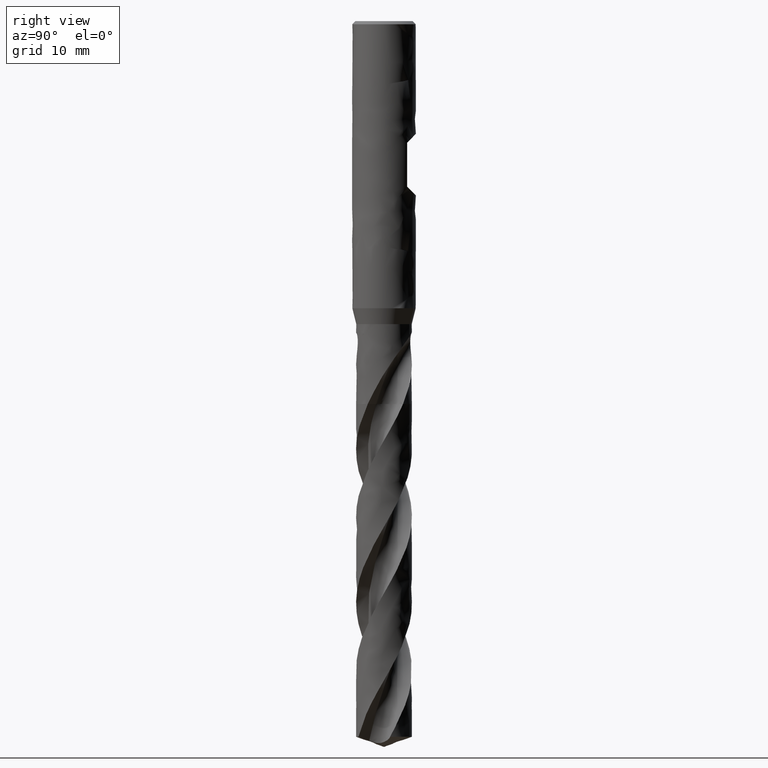
[diagram: clean part render]
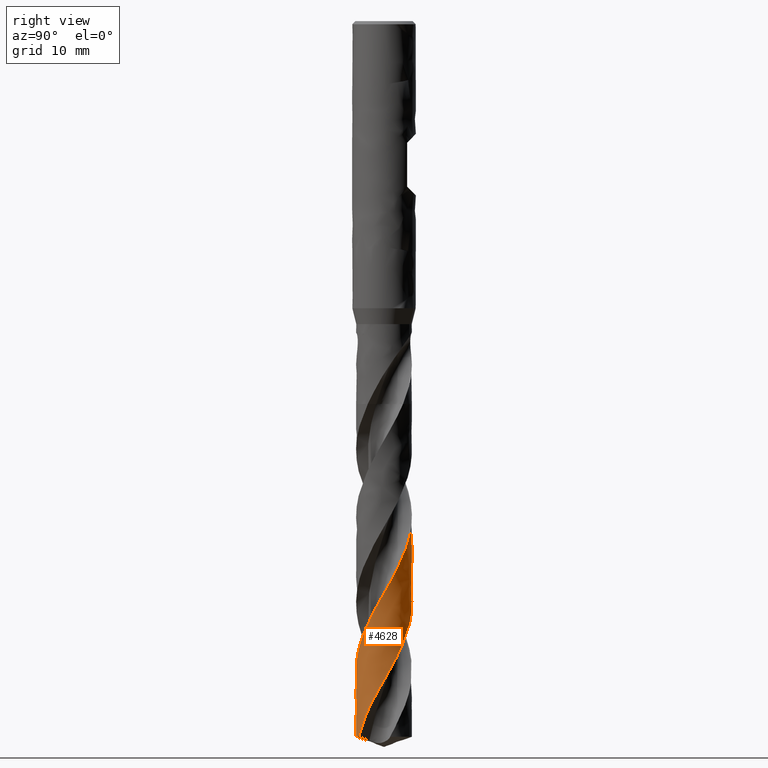
[diagram: same view with one face highlighted and labeled with its STEP entity id]
A machine part, right view. The second image highlights one B-rep face of the part: STEP entity #4628.
In plain terms, the highlighted face is a freeform B-spline surface patch.
Its self-contained STEP definition (entity closure, byte-faithful):
#2079 = VERTEX_POINT('', #2080);
#2080 = CARTESIAN_POINT('', (-3.41733029677763, -0.756210051986673, -89.7261041800683));
#2126 = EDGE_CURVE('', #2127, #2079, #2129, .T.);
#2127 = VERTEX_POINT('', #2128);
#2128 = CARTESIAN_POINT('', (-3.23621358706716, -1.33301223508334, -88.6576574191728));
#2129 = B_SPLINE_CURVE_WITH_KNOTS('', 3, (#2130, #2131, #2132, #2133, #2134, #2135, #2136), .UNSPECIFIED., .F., .U., (4, 3, 4), (0., 0.664192155566738, 1.22790963141977), .UNSPECIFIED.);
#2130 = CARTESIAN_POINT('', (-3.23621358706719, -1.33301223508326, -88.6576574191729));
#2131 = CARTESIAN_POINT('', (-3.27778316667915, -1.23209190231491, -88.8502810383199));
#2132 = CARTESIAN_POINT('', (-3.31463493641277, -1.1292055986633, -89.04296030143));
#2133 = CARTESIAN_POINT('', (-3.3465908668121, -1.02485587775508, -89.2355914422852));
#2134 = CARTESIAN_POINT('', (-3.37371271140522, -0.936291505557472, -89.3990825940302));
#2135 = CARTESIAN_POINT('', (-3.39731985772329, -0.846637677819727, -89.5626079232584));
#2136 = CARTESIAN_POINT('', (-3.41733029677763, -0.756210051986673, -89.7261041800683));
#3815 = VERTEX_POINT('', #3816);
#3816 = CARTESIAN_POINT('', (-3.5, 4.09578926173395E-15, -63.3893147736245));
#3913 = EDGE_CURVE('', #3914, #3815, #3916, .T.);
#3914 = VERTEX_POINT('', #3915);
#3915 = CARTESIAN_POINT('', (1.4222491837025, -3.19800050960871, -89.7261041800683));
#3916 = B_SPLINE_CURVE_WITH_KNOTS('', 3, (#3917, #3918, #3919, #3920, #3921, #3922, #3923, #3924, #3925, #3926, #3927, #3928, #3929, #3930, #3931, #3932, #3933, #3934, #3935, #3936, #3937, #3938, #3939, #3940, #3941, #3942, #3943, #3944, #3945, #3946, #3947, #3948, #3949, #3950, #3951, #3952, #3953, #3954, #3955, #3956, #3957, #3958, #3959, #3960, #3961, #3962, #3963, #3964, #3965, #3966, #3967, #3968, #3969, #3970, #3971, #3972, #3973, #3974, #3975, #3976, #3977, #3978, #3979, #3980, #3981, #3982, #3983, #3984, #3985, #3986, #3987, #3988, #3989, #3990, #3991, #3992, #3993, #3994, #3995, #3996, #3997, #3998, #3999, #4000, #4001, #4002, #4003, #4004, #4005, #4006, #4007, #4008, #4009, #4010, #4011, #4012, #4013, #4014, #4015, #4016, #4017, #4018, #4019, #4020, #4021, #4022, #4023, #4024, #4025, #4026, #4027, #4028, #4029, #4030, #4031, #4032, #4033, #4034, #4035, #4036, #4037, #4038, #4039, #4040, #4041, #4042, #4043, #4044, #4045, #4046, #4047, #4048, #4049, #4050, #4051, #4052, #4053, #4054, #4055, #4056, #4057, #4058, #4059, #4060, #4061, #4062, #4063, #4064, #4065, #4066, #4067), .UNSPECIFIED., .F., .U., (4, 3, 3, 3, 3, 3, 3, 3, 3, 3, 3, 3, 3, 3, 3, 3, 3, 3, 3, 3, 3, 3, 3, 3, 3, 3, 3, 3, 3, 3, 3, 3, 3, 3, 3, 3, 3, 3, 3, 3, 3, 3, 3, 3, 3, 3, 3, 3, 3, 3, 4), (0., 0.665645781716963, 1.33110577449268, 1.99638304334239, 2.66147987794214, 3.32639775791081, 3.9911373329028, 4.65569845307243, 5.32008015885256, 5.98428066099362, 6.6482973073176, 7.31212653206921, 7.97576381729242, 8.10707156616347, 8.19463557227802, 8.86116590539644, 9.52748292153568, 10.1935945707981, 10.8595075790275, 11.5252275110647, 12.1907588681643, 12.8561051740139, 13.5212690393616, 14.1862522080963, 14.8510555867853, 15.5156792589788, 16.1801224854416, 16.8443837197334, 17.5084606692591, 18.1723501784386, 18.8360481570927, 19.1313291579557, 19.2188806903114, 19.2772608522882, 19.943803137617, 20.6101303323553, 21.2762505127057, 21.9421704798662, 22.6078958517154, 23.2734311730753, 23.9387800034166, 24.6039449827666, 25.2689278787258, 25.9337296166431, 26.5983502942867, 27.2627891825353, 27.927044744985, 28.5911146520954, 29.2549956966294, 29.9186837306003, 30.3204217498991), .UNSPECIFIED.);
#3917 = CARTESIAN_POINT('', (1.42224918370251, -3.1980005096087, -89.7261041800683));
#3918 = CARTESIAN_POINT('', (1.52246757942452, -3.1534303067337, -89.5332276397378));
#3919 = CARTESIAN_POINT('', (1.62062123268252, -3.10412947864919, -89.3403025843341));
#3920 = CARTESIAN_POINT('', (1.71622329174629, -3.05034057325858, -89.1474332254537));
#3921 = CARTESIAN_POINT('', (1.81179866724078, -2.99656668093357, -88.9546176984986));
#3922 = CARTESIAN_POINT('', (1.90487496324643, -2.93827848774139, -88.761753588852));
#3923 = CARTESIAN_POINT('', (1.99499088407594, -2.87576274620384, -88.568945357169));
#3924 = CARTESIAN_POINT('', (2.08508206061574, -2.8132641704191, -88.3761900673269));
#3925 = CARTESIAN_POINT('', (2.17226199238554, -2.74650743828608, -88.1833859648348));
#3926 = CARTESIAN_POINT('', (2.25609912776273, -2.67582075739542, -87.9906378864942));
#3927 = CARTESIAN_POINT('', (2.33991352511572, -2.6051532479072, -87.7979420846353));
#3928 = CARTESIAN_POINT('', (2.42043084848225, -2.53052089852614, -87.6051974557849));
#3929 = CARTESIAN_POINT('', (2.49725246420626, -2.45229079230333, -87.4125088157646));
#3930 = CARTESIAN_POINT('', (2.57405340988167, -2.37408173510538, -87.219872021615));
#3931 = CARTESIAN_POINT('', (2.64720098416844, -2.29223575088396, -87.0271865068061));
#3932 = CARTESIAN_POINT('', (2.71633268166418, -2.20715580839302, -86.8345568410436));
#3933 = CARTESIAN_POINT('', (2.78544584074175, -2.12209868101598, -86.6419788310255));
#3934 = CARTESIAN_POINT('', (2.85058189743718, -2.03376422582779, -86.4493522926201));
#3935 = CARTESIAN_POINT('', (2.9114175144227, -1.94258797914348, -86.2567813878489));
#3936 = CARTESIAN_POINT('', (2.972236799585, -1.85143620947471, -86.0642621803257));
#3937 = CARTESIAN_POINT('', (3.02879056459236, -1.75739525426672, -85.8716946721288));
#3938 = CARTESIAN_POINT('', (3.08079749671854, -1.66092949405228, -85.6791825635645));
#3939 = CARTESIAN_POINT('', (3.13279038831226, -1.56448977710904, -85.4867224283122));
#3940 = CARTESIAN_POINT('', (3.18026711366716, -1.46557418853962, -85.2942142039913));
#3941 = CARTESIAN_POINT('', (3.22299097498415, -1.36467181958548, -85.1017611784102));
#3942 = CARTESIAN_POINT('', (3.2657031837841, -1.26379697076966, -84.9093606425173));
#3943 = CARTESIAN_POINT('', (3.30368850139092, -1.16088117429803, -84.7169121527089));
#3944 = CARTESIAN_POINT('', (3.3367570964077, -1.05643366075346, -84.5245187561121));
#3945 = CARTESIAN_POINT('', (3.36981653778257, -0.952015059085483, -84.3321786154901));
#3946 = CARTESIAN_POINT('', (3.39798011695371, -0.846008310539006, -84.1397905153186));
#3947 = CARTESIAN_POINT('', (3.42110668604864, -0.738937779974488, -83.9474575643732));
#3948 = CARTESIAN_POINT('', (3.44422672756935, -0.631897470530637, -83.7551789002357));
#3949 = CARTESIAN_POINT('', (3.46232519820988, -0.523735784504523, -83.5628520777457));
#3950 = CARTESIAN_POINT('', (3.47531090397563, -0.414986892213434, -83.3705806583421));
#3951 = CARTESIAN_POINT('', (3.48829285505547, -0.306269443568273, -83.1783648322811));
#3952 = CARTESIAN_POINT('', (3.49617196354779, -0.196907046411442, -82.9861005610117));
#3953 = CARTESIAN_POINT('', (3.4989076093213, -0.087438786790692, -82.7938919377404));
#3954 = CARTESIAN_POINT('', (3.49944888615463, -0.0657793184882177, -82.7558614017875));
#3955 = CARTESIAN_POINT('', (3.49978904613478, -0.044114364177964, -82.7178305956957));
#3956 = CARTESIAN_POINT('', (3.49992801083118, -0.0224481402194337, -82.6798003098591));
#3957 = CARTESIAN_POINT('', (3.50002068095636, -0.0079997821941421, -82.6544393984875));
#3958 = CARTESIAN_POINT('', (3.50002388218573, 0.00644931381910718, -82.6290784228058));
#3959 = CARTESIAN_POINT('', (3.49993761046511, 0.0208979150108381, -82.6037176273969));
#3960 = CARTESIAN_POINT('', (3.49928091690759, 0.130879531804628, -82.4106732457825));
#3961 = CARTESIAN_POINT('', (3.49343417498197, 0.240866868084467, -82.2175802422271));
#3962 = CARTESIAN_POINT('', (3.48242477835793, 0.3503108092525, -82.0245431020715));
#3963 = CARTESIAN_POINT('', (3.47141890519127, 0.459719723881216, -81.8315677416993));
#3964 = CARTESIAN_POINT('', (3.45524767737862, 0.568645531564415, -81.6385435691632));
#3965 = CARTESIAN_POINT('', (3.43398987576076, 0.676545292772567, -81.4455754967865));
#3966 = CARTESIAN_POINT('', (3.41273862605171, 0.784411797983304, -81.2526668994785));
#3967 = CARTESIAN_POINT('', (3.38639251299677, 0.891311024386059, -81.0597092269649));
#3968 = CARTESIAN_POINT('', (3.35508078031396, 0.99671107025452, -80.8668078760022));
#3969 = CARTESIAN_POINT('', (3.32377838509723, 1.10207968479458, -80.6739640501161));
#3970 = CARTESIAN_POINT('', (3.28749668088747, 1.20600610863253, -80.4810710145802));
#3971 = CARTESIAN_POINT('', (3.24641415091645, 1.30797368502942, -80.2882343864368));
#3972 = CARTESIAN_POINT('', (3.20534353249897, 1.40991169673674, -80.0954536697434));
#3973 = CARTESIAN_POINT('', (3.15945309916543, 1.50994603472391, -79.9026237418592));
#3974 = CARTESIAN_POINT('', (3.10896903892941, 1.60757939616629, -79.7098501828518));
#3975 = CARTESIAN_POINT('', (3.05849927904411, 1.70518510152664, -79.5171312297831));
#3976 = CARTESIAN_POINT('', (3.00341165647143, 1.8004430675234, -79.3243631673709));
#3977 = CARTESIAN_POINT('', (2.94397817665645, 1.89287941913123, -79.1316513420146));
#3978 = CARTESIAN_POINT('', (2.8845612223434, 1.98529006877593, -78.9389931002555));
#3979 = CARTESIAN_POINT('', (2.82076898681899, 2.07493015905197, -78.7462859196444));
#3980 = CARTESIAN_POINT('', (2.75291701577124, 2.16135325763216, -78.5536347872781));
#3981 = CARTESIAN_POINT('', (2.68508364999347, 2.24775265866818, -78.3610364805891));
#3982 = CARTESIAN_POINT('', (2.61315605576615, 2.33098356638125, -78.1683894341047));
#3983 = CARTESIAN_POINT('', (2.53749061363559, 2.41063091030363, -77.9757982317488));
#3984 = CARTESIAN_POINT('', (2.46184572657398, 2.49025661744441, -77.783259348197));
#3985 = CARTESIAN_POINT('', (2.3824236680567, 2.56634421064675, -77.5906719069418));
#3986 = CARTESIAN_POINT('', (2.2996184833237, 2.63851375421013, -77.3981401375665));
#3987 = CARTESIAN_POINT('', (2.2168356864475, 2.71066378545177, -77.2056604225848));
#3988 = CARTESIAN_POINT('', (2.13062602452966, 2.77893758671481, -77.01313226392));
#3989 = CARTESIAN_POINT('', (2.04141754091208, 2.84299391903263, -76.8206596895441));
#3990 = CARTESIAN_POINT('', (1.95223317170857, 2.90703293594659, -76.6282391434413));
#3991 = CARTESIAN_POINT('', (1.86000247313195, 2.96689204598108, -76.435770142783));
#3992 = CARTESIAN_POINT('', (1.76518330021614, 3.02227197926297, -76.2433567820274));
#3993 = CARTESIAN_POINT('', (1.67038987076337, 3.07763687685933, -76.0509956616162));
#3994 = CARTESIAN_POINT('', (1.57295757709134, 3.12855530677716, -75.858585911779));
#3995 = CARTESIAN_POINT('', (1.47336947796331, 3.17477280784093, -75.6662320194175));
#3996 = CARTESIAN_POINT('', (1.37380865619119, 3.22097764984969, -75.4739308131262));
#3997 = CARTESIAN_POINT('', (1.27203960016938, 3.26250904449603, -75.2815807408832));
#3998 = CARTESIAN_POINT('', (1.16856614204234, 3.29915946442005, -75.0892867243857));
#3999 = CARTESIAN_POINT('', (1.06512139036546, 3.33579971648584, -74.8970460556618));
#4000 = CARTESIAN_POINT('', (0.959918068112817, 3.36758123509648, -74.7047564049449));
#4001 = CARTESIAN_POINT('', (0.853476646520243, 3.39434494620757, -74.5125228829741));
#4002 = CARTESIAN_POINT('', (0.747065268760579, 3.42110110307471, -74.3203436202544));
#4003 = CARTESIAN_POINT('', (0.639359987473813, 3.44285649029956, -74.1281153805841));
#4004 = CARTESIAN_POINT('', (0.53089366174026, 3.45950168664863, -73.9359432288896));
#4005 = CARTESIAN_POINT('', (0.422458628280611, 3.47614208089861, -73.7438265183984));
#4006 = CARTESIAN_POINT('', (0.31320525348762, 3.48768408121665, -73.5516609307147));
#4007 = CARTESIAN_POINT('', (0.203674360160845, 3.4940687965486, -73.3595513045391));
#4008 = CARTESIAN_POINT('', (0.154943773588106, 3.49690937342856, -73.2740812194748));
#4009 = CARTESIAN_POINT('', (0.106149813740164, 3.49873051206004, -73.1886072860122));
#4010 = CARTESIAN_POINT('', (0.0573405996845676, 3.49953026213917, -73.1031386051477));
#4011 = CARTESIAN_POINT('', (0.042868549430217, 3.49976738997579, -73.077796934142));
#4012 = CARTESIAN_POINT('', (0.0283948619645062, 3.49991474666782, -73.0524551990462));
#4013 = CARTESIAN_POINT('', (0.0139207880866583, 3.49997231584181, -73.0271136397274));
#4014 = CARTESIAN_POINT('', (0.00426934333501289, 3.50001070349319, -73.0102156563573));
#4015 = CARTESIAN_POINT('', (-0.00538232512479643, 3.50000916916075, -72.993317662908));
#4016 = CARTESIAN_POINT('', (-0.0150338490626585, 3.49996771176284, -72.9764197320186));
#4017 = CARTESIAN_POINT('', (-0.125227939051729, 3.49949438130584, -72.7834914308463));
#4018 = CARTESIAN_POINT('', (-0.235436481577568, 3.49381101564929, -72.5905140529185));
#4019 = CARTESIAN_POINT('', (-0.345107191037446, 3.48294430427687, -72.3975929784502));
#4020 = CARTESIAN_POINT('', (-0.454742510187994, 3.47208109954974, -72.2047341588587));
#4021 = CARTESIAN_POINT('', (-0.56390064326763, 3.45603194077367, -72.0118261006337));
#4022 = CARTESIAN_POINT('', (-0.672035322713824, 3.43487532889115, -71.8189745370125));
#4023 = CARTESIAN_POINT('', (-0.780136406901324, 3.41372528994021, -71.6261828884732));
#4024 = CARTESIAN_POINT('', (-0.887273358620539, 3.38745951102792, -71.4333418040796));
#4025 = CARTESIAN_POINT('', (-0.99291075037987, 3.35620741936194, -71.2405573738851));
#4026 = CARTESIAN_POINT('', (-1.0985163911132, 3.32496472101739, -71.0478308881678));
#4027 = CARTESIAN_POINT('', (-1.20268018970608, 3.28872190780289, -70.8550548779991));
#4028 = CARTESIAN_POINT('', (-1.30488190356407, 3.24765811281777, -70.6623355736277));
#4029 = CARTESIAN_POINT('', (-1.40705375200982, 3.20660631750583, -70.4696725857432));
#4030 = CARTESIAN_POINT('', (-1.50731947591194, 3.16071433211251, -70.276960085323));
#4031 = CARTESIAN_POINT('', (-1.60517828348219, 3.11020942674882, -70.0843042478073));
#4032 = CARTESIAN_POINT('', (-1.70300915443616, 3.05971893946558, -69.8917034094515));
#4033 = CARTESIAN_POINT('', (-1.79848709228852, 3.00459100257631, -69.6990531498282));
#4034 = CARTESIAN_POINT('', (-1.89113494885343, 2.94509908241219, -69.5064594384507));
#4035 = CARTESIAN_POINT('', (-1.98375684437229, 2.88562383260115, -69.3139196941524));
#4036 = CARTESIAN_POINT('', (-2.0736003565814, 2.82175484778412, -69.1213306727145));
#4037 = CARTESIAN_POINT('', (-2.16021607715547, 2.75380945237667, -68.9287980412039));
#4038 = CARTESIAN_POINT('', (-2.24680786383897, 2.68588283182495, -68.7363186108315));
#4039 = CARTESIAN_POINT('', (-2.33022086839242, 2.61384498480849, -68.5437900683246));
#4040 = CARTESIAN_POINT('', (-2.41003738843765, 2.53805433084728, -68.351317747413));
#4041 = CARTESIAN_POINT('', (-2.48983205937316, 2.46228442394838, -68.1588981142014));
#4042 = CARTESIAN_POINT('', (-2.56607607544184, 2.38272209517938, -67.9664295170953));
#4043 = CARTESIAN_POINT('', (-2.6383872310238, 2.29976364419706, -67.7740170025972));
#4044 = CARTESIAN_POINT('', (-2.7106786872309, 2.21682779318029, -67.5816569061004));
#4045 = CARTESIAN_POINT('', (-2.77907937396433, 2.13045182789307, -67.389247933707));
#4046 = CARTESIAN_POINT('', (-2.84324614052922, 2.04106623713335, -67.1968949795269));
#4047 = CARTESIAN_POINT('', (-2.90739543112849, 1.9517049907437, -67.0045944131139));
#4048 = CARTESIAN_POINT('', (-2.96734856343538, 1.85928637630427, -66.812244949055));
#4049 = CARTESIAN_POINT('', (-3.02280469730491, 1.76427088678337, -66.6199515647412));
#4050 = CARTESIAN_POINT('', (-3.07824566261686, 1.66928138623472, -66.427710777193));
#4051 = CARTESIAN_POINT('', (-3.12922251869183, 1.57164433145289, -66.2354209427015));
#4052 = CARTESIAN_POINT('', (-3.17547952514292, 1.47184570706243, -66.0431873603848));
#4053 = CARTESIAN_POINT('', (-3.22172376879097, 1.37207461818031, -65.8510068173704));
#4054 = CARTESIAN_POINT('', (-3.26327586629654, 1.27008904307177, -65.6587770575476));
#4055 = CARTESIAN_POINT('', (-3.29992729793463, 1.16639608553268, -65.4666036866653));
#4056 = CARTESIAN_POINT('', (-3.33656848572327, 1.06273210953669, -65.2744840270568));
#4057 = CARTESIAN_POINT('', (-3.3683314791132, 0.957305900433742, -65.0823150788371));
#4058 = CARTESIAN_POINT('', (-3.39505657660846, 0.850641429527102, -64.8902025597759));
#4059 = CARTESIAN_POINT('', (-3.42177407344193, 0.744007294171835, -64.6981446778319));
#4060 = CARTESIAN_POINT('', (-3.44347089021827, 0.636078316012456, -64.5060375245779));
#4061 = CARTESIAN_POINT('', (-3.46003739880275, 0.527390935537382, -64.3139867563013));
#4062 = CARTESIAN_POINT('', (-3.47659909099552, 0.418735153814334, -64.1219918230681));
#4063 = CARTESIAN_POINT('', (-3.48804236677015, 0.309262897647552, -63.9299477071904));
#4064 = CARTESIAN_POINT('', (-3.49430856644917, 0.19951852656195, -63.7379598672266));
#4065 = CARTESIAN_POINT('', (-3.49810156936429, 0.13308899338906, -63.6217474140729));
#4066 = CARTESIAN_POINT('', (-3.5, 0.0665422029136713, -63.5055246666977));
#4067 = CARTESIAN_POINT('', (-3.5, 3.94930423086874E-15, -63.3893147736245));
#4243 = VERTEX_POINT('', #4244);
#4244 = CARTESIAN_POINT('', (-3.5, 3.43311929513212E-15, -52.567092936876));
#4257 = EDGE_CURVE('', #4243, #3815, #4258, .T.);
#4258 = LINE('', #4259, #4260);
#4259 = CARTESIAN_POINT('', (-3.5, 3.43311929513212E-15, -52.567092936876));
#4260 = VECTOR('', #4261, 10.8222218367485);
#4261 = DIRECTION('', (0., 6.62669966601833E-16, -10.8222218367485));
#4286 = EDGE_CURVE('', #2127, #4243, #4287, .T.);
#4287 = B_SPLINE_CURVE_WITH_KNOTS('', 3, (#4288, #4289, #4290, #4291, #4292, #4293, #4294, #4295, #4296, #4297, #4298, #4299, #4300, #4301, #4302, #4303, #4304, #4305, #4306, #4307, #4308, #4309, #4310, #4311, #4312, #4313, #4314, #4315, #4316, #4317, #4318, #4319, #4320, #4321, #4322, #4323, #4324, #4325, #4326, #4327, #4328, #4329, #4330, #4331, #4332, #4333, #4334, #4335, #4336, #4337, #4338, #4339, #4340, #4341, #4342, #4343, #4344, #4345, #4346, #4347, #4348, #4349, #4350, #4351, #4352, #4353, #4354, #4355, #4356, #4357, #4358, #4359, #4360, #4361, #4362, #4363, #4364, #4365, #4366, #4367, #4368, #4369, #4370, #4371, #4372, #4373, #4374, #4375, #4376, #4377, #4378, #4379, #4380, #4381, #4382, #4383, #4384, #4385, #4386, #4387, #4388, #4389, #4390, #4391, #4392, #4393, #4394, #4395, #4396, #4397, #4398, #4399, #4400, #4401, #4402, #4403, #4404, #4405, #4406, #4407, #4408, #4409, #4410, #4411, #4412, #4413, #4414, #4415, #4416, #4417, #4418, #4419, #4420, #4421, #4422, #4423, #4424, #4425, #4426, #4427, #4428, #4429, #4430, #4431, #4432, #4433, #4434, #4435, #4436, #4437, #4438, #4439, #4440, #4441, #4442, #4443, #4444, #4445, #4446, #4447, #4448, #4449, #4450, #4451, #4452, #4453, #4454, #4455, #4456, #4457, #4458, #4459, #4460, #4461, #4462, #4463, #4464, #4465, #4466, #4467, #4468, #4469, #4470, #4471, #4472, #4473, #4474, #4475, #4476, #4477, #4478, #4479, #4480, #4481, #4482, #4483, #4484, #4485, #4486, #4487, #4488, #4489, #4490, #4491, #4492, #4493, #4494, #4495, #4496, #4497, #4498), .UNSPECIFIED., .F., .U., (4, 3, 3, 3, 3, 3, 3, 3, 3, 3, 3, 3, 3, 3, 3, 3, 3, 3, 3, 3, 3, 3, 3, 3, 3, 3, 3, 3, 3, 3, 3, 3, 3, 3, 3, 3, 3, 3, 3, 3, 3, 3, 3, 3, 3, 3, 3, 3, 3, 3, 3, 3, 3, 3, 3, 3, 3, 3, 3, 3, 3, 3, 3, 3, 3, 3, 3, 3, 3, 3, 4), (0., 0.665696927607767, 1.33120910642811, 1.99653979167091, 2.66169135316979, 3.32666531430845, 3.99146238351909, 4.65608246076089, 5.32052463842921, 5.98478724248769, 6.64886789152936, 7.31276334666327, 7.9764694435651, 8.27175233842997, 8.35930404334361, 8.41769648192945, 9.08421757182666, 9.75052704022185, 10.4166326518453, 11.0825409527459, 11.7482573347178, 12.4137861411314, 13.079130750072, 13.7442936365028, 14.4092764161929, 15.0740798733322, 15.7387039730723, 16.4031478608942, 17.067409899794, 17.7314876963212, 18.3953779850564, 19.0590765640893, 19.3543576170844, 19.4419091506907, 19.5002895123589, 20.1668315350971, 20.8331588076763, 21.4992792931688, 22.16519967079, 22.8309254399997, 23.4964610319406, 24.1618098953261, 24.8269745606603, 25.4919566856364, 26.15675708371, 26.8213757371363, 27.4858117970764, 28.150063620684, 28.8141287514138, 29.4780038454642, 30.1416846075072, 30.4369616959306, 30.524512866757, 30.582902795901, 31.249454020457, 31.9157878573161, 32.581912381005, 33.2478343322412, 33.9135592556611, 34.5790916131995, 35.2444348712913, 35.9095915658836, 36.5745633481711, 37.2393510130516, 37.9039545117296, 38.568372953778, 39.2326046236743, 39.8966469528464, 40.5604964660259, 41.2241487275287, 41.5639877031654), .UNSPECIFIED.);
#4288 = CARTESIAN_POINT('', (-3.23621358706716, -1.33301223508334, -88.6576574191728));
#4289 = CARTESIAN_POINT('', (-3.19454982877418, -1.4341612096594, -88.4645973982494));
#4290 = CARTESIAN_POINT('', (-3.14812375508154, -1.5333912629376, -88.2714916717827));
#4291 = CARTESIAN_POINT('', (-3.09716029315799, -1.63021413270942, -88.0784444937931));
#4292 = CARTESIAN_POINT('', (-3.04621097496471, -1.72701013153286, -87.8854508915834));
#4293 = CARTESIAN_POINT('', (-2.99070040633197, -1.8214503345691, -87.6924118048745));
#4294 = CARTESIAN_POINT('', (-2.9308986329947, -1.91306905340863, -87.4994310100518));
#4295 = CARTESIAN_POINT('', (-2.8711131683564, -2.00466278666626, -87.3065028435295));
#4296 = CARTESIAN_POINT('', (-2.80700735192899, -2.0934847429205, -87.1135294847516));
#4297 = CARTESIAN_POINT('', (-2.73889424018142, -2.17909576226035, -86.9206140925006));
#4298 = CARTESIAN_POINT('', (-2.67079946619559, -2.26468373296192, -86.7277506379221));
#4299 = CARTESIAN_POINT('', (-2.59866299444185, -2.34710838374365, -86.5348423018949));
#4300 = CARTESIAN_POINT('', (-2.52283830050438, -2.42596102802748, -86.3419916151871));
#4301 = CARTESIAN_POINT('', (-2.44703385231799, -2.5047926180752, -86.1491924210314));
#4302 = CARTESIAN_POINT('', (-2.36750177357107, -2.58009709439162, -85.9563485889605));
#4303 = CARTESIAN_POINT('', (-2.28463278866395, -2.65150014538215, -85.763562181579));
#4304 = CARTESIAN_POINT('', (-2.20178584801023, -2.72288420221037, -85.5708270579488));
#4305 = CARTESIAN_POINT('', (-2.11555813939788, -2.79040821469935, -85.3780473893596));
#4306 = CARTESIAN_POINT('', (-2.02637383873437, -2.85373598388024, -85.1853250990261));
#4307 = CARTESIAN_POINT('', (-1.93721328201573, -2.91704689301907, -84.9926541180307));
#4308 = CARTESIAN_POINT('', (-1.84504875156898, -2.97619857444129, -84.7999384416679));
#4309 = CARTESIAN_POINT('', (-1.75033339918749, -3.03089640068557, -84.6072803693338));
#4310 = CARTESIAN_POINT('', (-1.65564339936661, -3.08557958590366, -84.4146738659938));
#4311 = CARTESIAN_POINT('', (-1.55835294034528, -3.13584080410006, -84.2220222465583));
#4312 = CARTESIAN_POINT('', (-1.45893930384261, -3.18142988414066, -84.0294286937096));
#4313 = CARTESIAN_POINT('', (-1.35955253508882, -3.22700664317585, -83.8368871916198));
#4314 = CARTESIAN_POINT('', (-1.2579916421134, -3.26793772104482, -83.6443001279721));
#4315 = CARTESIAN_POINT('', (-1.15475385831836, -3.30401929877823, -83.451771479351));
#4316 = CARTESIAN_POINT('', (-1.05154435344881, -3.34009099303477, -83.2592955682366));
#4317 = CARTESIAN_POINT('', (-0.946605639671556, -3.37133446071825, -83.0667739136702));
#4318 = CARTESIAN_POINT('', (-0.840451291363016, -3.39759350523965, -82.8743107683741));
#4319 = CARTESIAN_POINT('', (-0.734326546595276, -3.42384522683262, -82.6819012957787));
#4320 = CARTESIAN_POINT('', (-0.626932188919985, -3.4451288119137, -82.489446119218));
#4321 = CARTESIAN_POINT('', (-0.518794308426089, -3.46133680325185, -82.2970493435119));
#4322 = CARTESIAN_POINT('', (-0.41068727133941, -3.4775401716986, -82.1047074437851));
#4323 = CARTESIAN_POINT('', (-0.301780926954734, -3.48867923693406, -81.9123200374663));
#4324 = CARTESIAN_POINT('', (-0.192609766239787, -3.49469619251106, -81.7199907861266));
#4325 = CARTESIAN_POINT('', (-0.144039508226268, -3.49737313652189, -81.6344234870345));
#4326 = CARTESIAN_POINT('', (-0.0954084647134712, -3.49903756702111, -81.5488530054968));
#4327 = CARTESIAN_POINT('', (-0.0467643688849631, -3.4996875708844, -81.4632882457961));
#4328 = CARTESIAN_POINT('', (-0.0323413406708917, -3.49988029774878, -81.4379181999092));
#4329 = CARTESIAN_POINT('', (-0.0179168764906649, -3.49998386517256, -81.4125481363524));
#4330 = CARTESIAN_POINT('', (-0.00349221967268764, -3.49999825777124, -81.3871782884351));
#4331 = CARTESIAN_POINT('', (0.00612827701776743, -3.50000785688682, -81.3702579179191));
#4332 = CARTESIAN_POINT('', (0.0157489116051692, -3.4999777897783, -81.3533375568079));
#4333 = CARTESIAN_POINT('', (0.0253693219565456, -3.49990805557852, -81.3364172781777));
#4334 = CARTESIAN_POINT('', (0.135181594708819, -3.499112073839, -81.143280583991));
#4335 = CARTESIAN_POINT('', (0.244997982184085, -3.49314190265462, -80.950098450161));
#4336 = CARTESIAN_POINT('', (0.354271752311934, -3.48202405584944, -80.7569746864244));
#4337 = CARTESIAN_POINT('', (0.463510827844643, -3.47090973897823, -80.5639122397888));
#4338 = CARTESIAN_POINT('', (0.572266999643736, -3.45464501622014, -80.3708039565666));
#4339 = CARTESIAN_POINT('', (0.680000069625863, -3.43330742947802, -80.1777544681241));
#4340 = CARTESIAN_POINT('', (0.787700178773882, -3.41197637095103, -79.9847640429957));
#4341 = CARTESIAN_POINT('', (0.894434911524265, -3.38556427841985, -79.7917273845149));
#4342 = CARTESIAN_POINT('', (0.999675120666834, -3.35419880942078, -79.598749827546));
#4343 = CARTESIAN_POINT('', (1.10488415604148, -3.32284263135585, -79.4058294334964));
#4344 = CARTESIAN_POINT('', (1.208654534548, -3.28651963356505, -79.2128626492049));
#4345 = CARTESIAN_POINT('', (1.31047198720956, -3.24540647234504, -79.0199550449597));
#4346 = CARTESIAN_POINT('', (1.41226009544575, -3.2043051601947, -78.8271030378902));
#4347 = CARTESIAN_POINT('', (1.51214951961921, -3.15839498421114, -78.6342046805525));
#4348 = CARTESIAN_POINT('', (1.60964476955743, -3.10790021008339, -78.4413654016314));
#4349 = CARTESIAN_POINT('', (1.7071125487492, -3.0574196636143, -78.2485804580645));
#4350 = CARTESIAN_POINT('', (1.80223879392405, -3.00233050711236, -78.0557493456554));
#4351 = CARTESIAN_POINT('', (1.89455077325649, -2.94290288109431, -77.862977086873));
#4352 = CARTESIAN_POINT('', (1.98683720353206, -2.88349170277685, -77.670258181398));
#4353 = CARTESIAN_POINT('', (2.0763602003788, -2.81971269309597, -77.4774933690341));
#4354 = CARTESIAN_POINT('', (2.16267381656848, -2.75187971450954, -77.2847871249061));
#4355 = CARTESIAN_POINT('', (2.24896385831755, -2.68406526283225, -77.0921335137473));
#4356 = CARTESIAN_POINT('', (2.33209311662897, -2.61216219714151, -76.8994342716107));
#4357 = CARTESIAN_POINT('', (2.4116464489383, -2.53652545923026, -76.7067933199662));
#4358 = CARTESIAN_POINT('', (2.49117824052176, -2.46090920154516, -76.5142045298819));
#4359 = CARTESIAN_POINT('', (2.56717985065011, -2.38151960373949, -76.3215703263283));
#4360 = CARTESIAN_POINT('', (2.63927088146534, -2.29874948923303, -76.1289942172558));
#4361 = CARTESIAN_POINT('', (2.71134247185607, -2.21600169492571, -75.9364700392108));
#4362 = CARTESIAN_POINT('', (2.77954562109848, -2.12982923081221, -75.7439005284913));
#4363 = CARTESIAN_POINT('', (2.84353844170632, -2.04065899418261, -75.5513890780627));
#4364 = CARTESIAN_POINT('', (2.9075139976839, -1.95151281480115, -75.3589295653199));
#4365 = CARTESIAN_POINT('', (2.96731694295845, -1.85932111275564, -75.1664245795413));
#4366 = CARTESIAN_POINT('', (3.02264737805838, -1.76454040132744, -74.9739778679586));
#4367 = CARTESIAN_POINT('', (3.07796281038628, -1.66978538955989, -74.7815833380394));
#4368 = CARTESIAN_POINT('', (3.12883831111018, -1.57239119487739, -74.5891429608708));
#4369 = CARTESIAN_POINT('', (3.17501885858037, -1.47283917915672, -74.3967612630593));
#4370 = CARTESIAN_POINT('', (3.22118676708596, -1.37331440941887, -74.2044322174055));
#4371 = CARTESIAN_POINT('', (3.26268688848531, -1.27158005153148, -74.012056952355));
#4372 = CARTESIAN_POINT('', (3.29931103625381, -1.16813812798571, -73.8197406565748));
#4373 = CARTESIAN_POINT('', (3.33592502580238, -1.06472489550506, -73.6274777024106));
#4374 = CARTESIAN_POINT('', (3.36768498537523, -0.9595507257716, -73.4351683881602));
#4375 = CARTESIAN_POINT('', (3.39443095292082, -0.853134518029523, -73.2429181127988));
#4376 = CARTESIAN_POINT('', (3.42116936852394, -0.746748357773216, -73.0507221208734));
#4377 = CARTESIAN_POINT('', (3.44291064641657, -0.639065013140071, -72.8584798172535));
#4378 = CARTESIAN_POINT('', (3.45954424629666, -0.530616252970748, -72.6662964489617));
#4379 = CARTESIAN_POINT('', (3.47617304293963, -0.422198809240122, -72.4741685769122));
#4380 = CARTESIAN_POINT('', (3.48770588885567, -0.312958987701883, -72.2819945762118));
#4381 = CARTESIAN_POINT('', (3.49408261567852, -0.20343715200377, -72.0898792903507));
#4382 = CARTESIAN_POINT('', (3.496919636384, -0.154710630669316, -72.0044067495052));
#4383 = CARTESIAN_POINT('', (3.49873745137082, -0.105919787863821, -71.9189309491643));
#4384 = CARTESIAN_POINT('', (3.49953398703061, -0.0571128148287613, -71.8334609385142));
#4385 = CARTESIAN_POINT('', (3.49977016174578, -0.0426414313906541, -71.808118877336));
#4386 = CARTESIAN_POINT('', (3.49991657497975, -0.0281683344837426, -71.7827767990608));
#4387 = CARTESIAN_POINT('', (3.49997320745533, -0.0136947834900151, -71.7574349385083));
#4388 = CARTESIAN_POINT('', (3.50001097063628, -0.00404365452821925, -71.7405366967133));
#4389 = CARTESIAN_POINT('', (3.50000881458689, 0.00560772878672672, -71.7236384638235));
#4390 = CARTESIAN_POINT('', (3.49996673740145, 0.0152590000794716, -71.7067403135105));
#4391 = CARTESIAN_POINT('', (3.49948633249321, 0.125449785227736, -71.5138102430498));
#4392 = CARTESIAN_POINT('', (3.49379617339113, 0.23565972045774, -71.3208339522656));
#4393 = CARTESIAN_POINT('', (3.48292159699415, 0.345336284210197, -71.1279167499221));
#4394 = CARTESIAN_POINT('', (3.47205052422775, 0.454977511766744, -70.9350617026992));
#4395 = CARTESIAN_POINT('', (3.45599244748656, 0.564145857160187, -70.7421600765963));
#4396 = CARTESIAN_POINT('', (3.43482448944268, 0.672295118772269, -70.5493179053589));
#4397 = CARTESIAN_POINT('', (3.4136631006337, 0.780410817491679, -70.3565355804949));
#4398 = CARTESIAN_POINT('', (3.38738365366648, 0.887566181840862, -70.1637063627942));
#4399 = CARTESIAN_POINT('', (3.35611418449717, 0.993225845725416, -69.9709368392913));
#4400 = CARTESIAN_POINT('', (3.32485410892415, 1.09885376860983, -69.7782252252805));
#4401 = CARTESIAN_POINT('', (3.28859038843304, 1.2030430654624, -69.5854666106481));
#4402 = CARTESIAN_POINT('', (3.24750084722705, 1.30527324620542, -69.3927677358692));
#4403 = CARTESIAN_POINT('', (3.20642331401874, 1.40747355122492, -69.2001251753632));
#4404 = CARTESIAN_POINT('', (3.16050092012139, 1.50777023767343, -69.0074356710742));
#4405 = CARTESIAN_POINT('', (3.10995984351346, 1.60566178622205, -68.8148058019029));
#4406 = CARTESIAN_POINT('', (3.05943320492844, 1.70352537018193, -68.6222309611294));
#4407 = CARTESIAN_POINT('', (3.00426340658653, 1.79903765433635, -68.4296093505559));
#4408 = CARTESIAN_POINT('', (2.94472317706424, 1.89172022520792, -68.2370471691801));
#4409 = CARTESIAN_POINT('', (2.88519965267564, 1.98437679223722, -68.0445390147541));
#4410 = CARTESIAN_POINT('', (2.82127578957572, 2.07425554765429, -67.851984328198));
#4411 = CARTESIAN_POINT('', (2.75326863265529, 2.16090532796707, -67.6594888189798));
#4412 = CARTESIAN_POINT('', (2.68528030312974, 2.24753111978066, -67.4670466010493));
#4413 = CARTESIAN_POINT('', (2.61317345435143, 2.33097743599041, -67.2745580927175));
#4414 = CARTESIAN_POINT('', (2.53730672015986, 2.41082446640804, -67.082128525401));
#4415 = CARTESIAN_POINT('', (2.46146080598709, 2.49064958449885, -66.8897517663047));
#4416 = CARTESIAN_POINT('', (2.38181476210387, 2.56692188598771, -66.6973288965863));
#4417 = CARTESIAN_POINT('', (2.2987655332299, 2.63925690739539, -66.5049648150204));
#4418 = CARTESIAN_POINT('', (2.21573900012256, 2.71157216102452, -66.3126533028806));
#4419 = CARTESIAN_POINT('', (2.12926458143316, 2.77999283068471, -66.1202957253363));
#4420 = CARTESIAN_POINT('', (2.03977365488869, 2.84417359470586, -65.9279969411367));
#4421 = CARTESIAN_POINT('', (1.95030719357758, 2.90833681284353, -65.7357507280168));
#4422 = CARTESIAN_POINT('', (1.85777596213403, 2.96829826052323, -65.5434582811943));
#4423 = CARTESIAN_POINT('', (1.76264125958934, 3.02375524637715, -65.3512248714758));
#4424 = CARTESIAN_POINT('', (1.6675326938028, 3.07919699629939, -65.1590442748529));
#4425 = CARTESIAN_POINT('', (1.5697699268679, 3.1301672037951, -64.9668170955396));
#4426 = CARTESIAN_POINT('', (1.46983955589984, 3.17640861349925, -64.7746493000444));
#4427 = CARTESIAN_POINT('', (1.3699368938509, 3.2226372012808, -64.5825347892698));
#4428 = CARTESIAN_POINT('', (1.26781401624122, 3.26416453896906, -64.3903734206885));
#4429 = CARTESIAN_POINT('', (1.16397871225373, 3.30078074967428, -64.1982716450009));
#4430 = CARTESIAN_POINT('', (1.06017259194485, 3.33738666912322, -64.0062238609353));
#4431 = CARTESIAN_POINT('', (0.954599560657895, 3.36910377595929, -63.8141291388183));
#4432 = CARTESIAN_POINT('', (0.847784630322897, 3.39577107894345, -63.6220940354495));
#4433 = CARTESIAN_POINT('', (0.741000267403234, 3.42243075049889, -63.430113887102));
#4434 = CARTESIAN_POINT('', (0.632917598195718, 3.44405775288479, -63.2380868750058));
#4435 = CARTESIAN_POINT('', (0.524074658198241, 3.4605412513992, -63.0461193665555));
#4436 = CARTESIAN_POINT('', (0.415263579114372, 3.4770199248021, -62.8542080515543));
#4437 = CARTESIAN_POINT('', (0.305633970743133, 3.48836696968511, -62.6622500546712));
#4438 = CARTESIAN_POINT('', (0.195732440267016, 3.49452268726782, -62.4703513543785));
#4439 = CARTESIAN_POINT('', (0.146836335711624, 3.49726141719482, -62.3849740273029));
#4440 = CARTESIAN_POINT('', (0.0978777530541636, 3.49897395103732, -62.2995933759697));
#4441 = CARTESIAN_POINT('', (0.0489053502409162, 3.49965830713769, -62.2142185958512));
#4442 = CARTESIAN_POINT('', (0.0343847816882456, 3.49986122223066, -62.188904535765));
#4443 = CARTESIAN_POINT('', (0.0198626963504326, 3.4999737673033, -62.163590459976));
#4444 = CARTESIAN_POINT('', (0.00534036780073086, 3.49999592577931, -62.1382766059396));
#4445 = CARTESIAN_POINT('', (-0.00434491369828788, 3.50001070378665, -62.1213942030021));
#4446 = CARTESIAN_POINT('', (-0.0140303544340183, 3.49998527955789, -62.1045118083568));
#4447 = CARTESIAN_POINT('', (-0.0237155834194414, 3.49991965209247, -62.0876294963829));
#4448 = CARTESIAN_POINT('', (-0.13427747885211, 3.49917048065004, -61.8949091782643));
#4449 = CARTESIAN_POINT('', (-0.244845973272975, 3.49317619340402, -61.7021418755168));
#4450 = CARTESIAN_POINT('', (-0.354863026866552, 3.48196384705004, -61.5094344646498));
#4451 = CARTESIAN_POINT('', (-0.464844199716059, 3.47075515746852, -61.3167899029963));
#4452 = CARTESIAN_POINT('', (-0.574335055319482, 3.45432565057353, -61.1240980294316));
#4453 = CARTESIAN_POINT('', (-0.682783928491492, 3.43275488594714, -60.9314663491209));
#4454 = CARTESIAN_POINT('', (-0.79119873498972, 3.4111908972713, -60.7388951795414));
#4455 = CARTESIAN_POINT('', (-0.898631204135869, 3.38447716405379, -60.5462764847697));
#4456 = CARTESIAN_POINT('', (-1.00454049869702, 3.35274490328114, -60.3537181398955));
#4457 = CARTESIAN_POINT('', (-1.1104175856081, 3.32102229247882, -60.161218353166));
#4458 = CARTESIAN_POINT('', (-1.21482967078151, 3.28426705250032, -59.9686709952154));
#4459 = CARTESIAN_POINT('', (-1.31725100715704, 3.24266091106422, -59.7761839870573));
#4460 = CARTESIAN_POINT('', (-1.41964203990281, 3.20106707973021, -59.5837539304607));
#4461 = CARTESIAN_POINT('', (-1.52009898152436, 3.15460266302473, -59.3912763888719));
#4462 = CARTESIAN_POINT('', (-1.61811546035808, 3.10349840614591, -59.198859077074));
#4463 = CARTESIAN_POINT('', (-1.71610358719689, 3.05240893155317, -59.0064974234136));
#4464 = CARTESIAN_POINT('', (-1.81170619851308, 2.9966543599907, -58.8140884618084));
#4465 = CARTESIAN_POINT('', (-1.90444059002065, 2.93651256409398, -58.621739533471));
#4466 = CARTESIAN_POINT('', (-1.99714863266339, 2.87638785644279, -58.4294452577368));
#4467 = CARTESIAN_POINT('', (-2.08704133147148, 2.81184514776426, -58.2371038937881));
#4468 = CARTESIAN_POINT('', (-2.1736639166872, 2.74320709704756, -58.044822340213));
#4469 = CARTESIAN_POINT('', (-2.2602622127673, 2.67458829256922, -57.8525947027466));
#4470 = CARTESIAN_POINT('', (-2.34364067785593, 2.60183801861501, -57.6603201843798));
#4471 = CARTESIAN_POINT('', (-2.42337667034941, 2.52532087339535, -57.4681052843163));
#4472 = CARTESIAN_POINT('', (-2.50309049638755, 2.44882499979755, -57.2759438196321));
#4473 = CARTESIAN_POINT('', (-2.57920887982401, 2.36852113688321, -57.0837356066082));
#4474 = CARTESIAN_POINT('', (-2.65134536032577, 2.28481241686905, -56.8915869151655));
#4475 = CARTESIAN_POINT('', (-2.72346186767666, 2.20112687412779, -56.6994914258582));
#4476 = CARTESIAN_POINT('', (-2.79163949785695, 2.11399098967987, -56.5073491761436));
#4477 = CARTESIAN_POINT('', (-2.85553179862347, 2.02384242149684, -56.3152665187643));
#4478 = CARTESIAN_POINT('', (-2.91940639929863, 1.93371882718193, -56.1232370740655));
#4479 = CARTESIAN_POINT('', (-2.97903393076861, 1.84053362356327, -55.9311606538137));
#4480 = CARTESIAN_POINT('', (-3.03411139577711, 1.74475443487486, -55.7391441067209));
#4481 = CARTESIAN_POINT('', (-3.08917352464902, 1.64900191558238, -55.5471810259958));
#4482 = CARTESIAN_POINT('', (-3.13971854935011, 1.55060399583842, -55.3551706573364));
#4483 = CARTESIAN_POINT('', (-3.18548957950552, 1.45005383998726, -55.1632204390373));
#4484 = CARTESIAN_POINT('', (-3.23124774313997, 1.34953194940965, -54.9713241791373));
#4485 = CARTESIAN_POINT('', (-3.27225954976358, 1.24680424161151, -54.7793804600312));
#4486 = CARTESIAN_POINT('', (-3.3083161370886, 1.1423853715272, -54.5874970145001));
#4487 = CARTESIAN_POINT('', (-3.3443624464027, 1.03799626627552, -54.3956682657745));
#4488 = CARTESIAN_POINT('', (-3.3754759265141, 0.931860285991105, -54.2037920447558));
#4489 = CARTESIAN_POINT('', (-3.40149734939055, 0.824509419042384, -54.011976071842));
#4490 = CARTESIAN_POINT('', (-3.42751121650396, 0.717189723245027, -53.8202157959607));
#4491 = CARTESIAN_POINT('', (-3.44845014120304, 0.608597363985274, -53.6284081531497));
#4492 = CARTESIAN_POINT('', (-3.46420585677584, 0.499277259527389, -53.436660626484));
#4493 = CARTESIAN_POINT('', (-3.47995689080373, 0.389989637693163, -53.2449700743591));
#4494 = CARTESIAN_POINT('', (-3.49053643202636, 0.279914596169261, -53.0532323528809));
#4495 = CARTESIAN_POINT('', (-3.49588815832882, 0.169605378626428, -52.8615545433051));
#4496 = CARTESIAN_POINT('', (-3.49862863747733, 0.11311891174067, -52.7634013473664));
#4497 = CARTESIAN_POINT('', (-3.5, 0.0565587979586356, -52.6652427377605));
#4498 = CARTESIAN_POINT('', (-3.5, 3.45046652989189E-15, -52.567092936876));
#4628 = ADVANCED_FACE('', (#4629), #4642, .T.);
#4629 = FACE_OUTER_BOUND('', #4630, .T.);
#4630 = EDGE_LOOP('', (#4631, #4632, #4639, #4640, #4641));
#4631 = ORIENTED_EDGE('', *, *, #2126, .T.);
#4632 = ORIENTED_EDGE('', *, *, #4633, .F.);
#4633 = EDGE_CURVE('', #3914, #2079, #4634, .T.);
#4634 = CIRCLE('', #4635, 3.5);
#4635 = AXIS2_PLACEMENT_3D('', #4636, #4637, #4638);
#4636 = CARTESIAN_POINT('', (3.36419006260486E-31, 5.49413931420413E-15, -89.7261041800683));
#4637 = DIRECTION('', (3.74939945665464E-33, 6.12323399573677E-17, -1.));
#4638 = DIRECTION('', (-1., 6.12323399573677E-17, 0.));
#4639 = ORIENTED_EDGE('', *, *, #3913, .T.);
#4640 = ORIENTED_EDGE('', *, *, #4257, .F.);
#4641 = ORIENTED_EDGE('', *, *, #4286, .F.);
#4642 = (
   BOUNDED_SURFACE ()
   B_SPLINE_SURFACE (2, 1, ((#4643, #4644), (#4645, #4646), (#4647, #4648), (#4649, #4650), (#4651, #4652), (#4653, #4654), (#4655, #4656), (#4657, #4658), (#4659, #4660)), .UNSPECIFIED., .F., .F., .U.)
   B_SPLINE_SURFACE_WITH_KNOTS ((3, 2, 2, 2, 3), (2, 2), (0., 5.49778714378214, 10.9955742875643, 16.4933614313464, 21.1779937089007), (0.281619757911116, 1.), .UNSPECIFIED.)
   GEOMETRIC_REPRESENTATION_ITEM ()
   RATIONAL_B_SPLINE_SURFACE (((1., 1.), (0.707106781186548, 0.707106781186548), (1., 1.), (0.707106781186548, 0.707106781186548), (1., 1.), (0.707106781186548, 0.707106781186548), (1., 1.), (0.75042740090764, 0.75042740090764), (0.926173506495752, 0.926173506495752)))
   REPRESENTATION_ITEM ('')
   SURFACE ()
);
#4643 = CARTESIAN_POINT('', (-3.5, 3.43311929513212E-15, -52.567092936876));
#4644 = CARTESIAN_POINT('', (-3.5, 5.70845250405492E-15, -89.7261041800683));
#4645 = CARTESIAN_POINT('', (-3.5, 3.5, -52.567092936876));
#4646 = CARTESIAN_POINT('', (-3.5, 3.5, -89.7261041800683));
#4647 = CARTESIAN_POINT('', (1.97215226305253E-31, 3.5, -52.567092936876));
#4648 = CARTESIAN_POINT('', (3.20474742746036E-31, 3.50000000000001, -89.7261041800683));
#4649 = CARTESIAN_POINT('', (3.5, 3.5, -52.567092936876));
#4650 = CARTESIAN_POINT('', (3.5, 3.5, -89.7261041800683));
#4651 = CARTESIAN_POINT('', (3.5, 3.43311929513212E-15, -52.567092936876));
#4652 = CARTESIAN_POINT('', (3.5, 5.70845250405492E-15, -89.7261041800683));
#4653 = CARTESIAN_POINT('', (3.5, -3.5, -52.567092936876));
#4654 = CARTESIAN_POINT('', (3.5, -3.49999999999999, -89.7261041800683));
#4655 = CARTESIAN_POINT('', (4.28626379701574E-16, -3.5, -52.567092936876));
#4656 = CARTESIAN_POINT('', (4.28626379701574E-16, -3.49999999999999, -89.7261041800683));
#4657 = CARTESIAN_POINT('', (-2.81016582655238, -3.5, -52.567092936876));
#4658 = CARTESIAN_POINT('', (-2.81016582655238, -3.5, -89.7261041800683));
#4659 = CARTESIAN_POINT('', (-3.41733029677763, -0.756210051986675, -52.567092936876));
#4660 = CARTESIAN_POINT('', (-3.41733029677763, -0.756210051986673, -89.7261041800683));